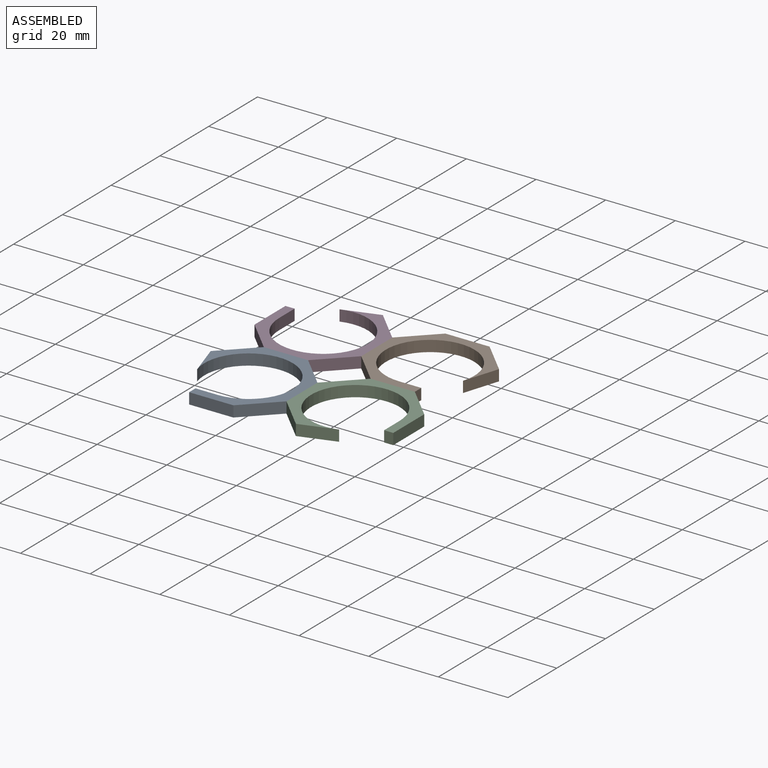
[diagram: assembled view]
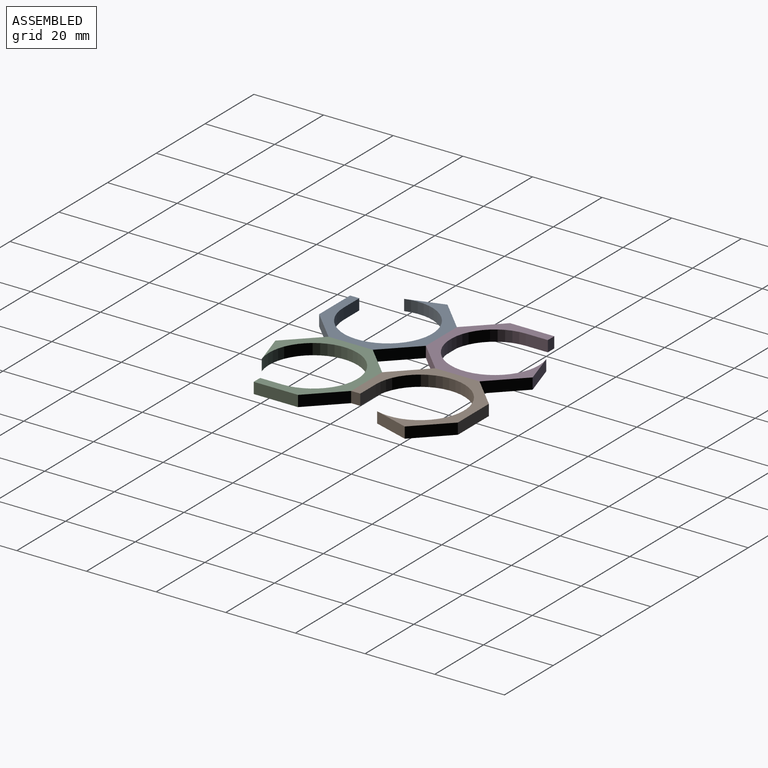
[diagram: assembled view, second angle]
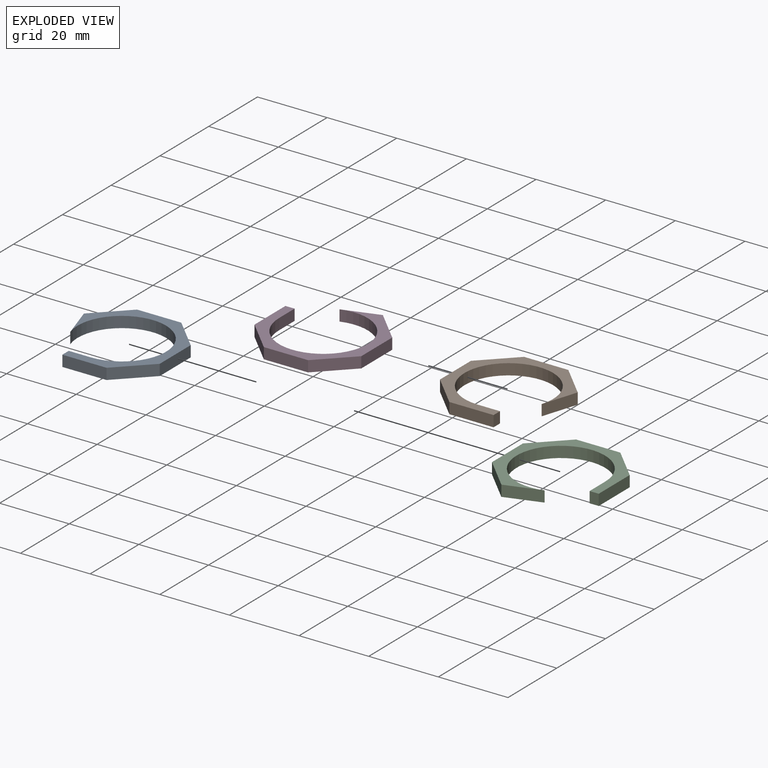
[diagram: exploded view]
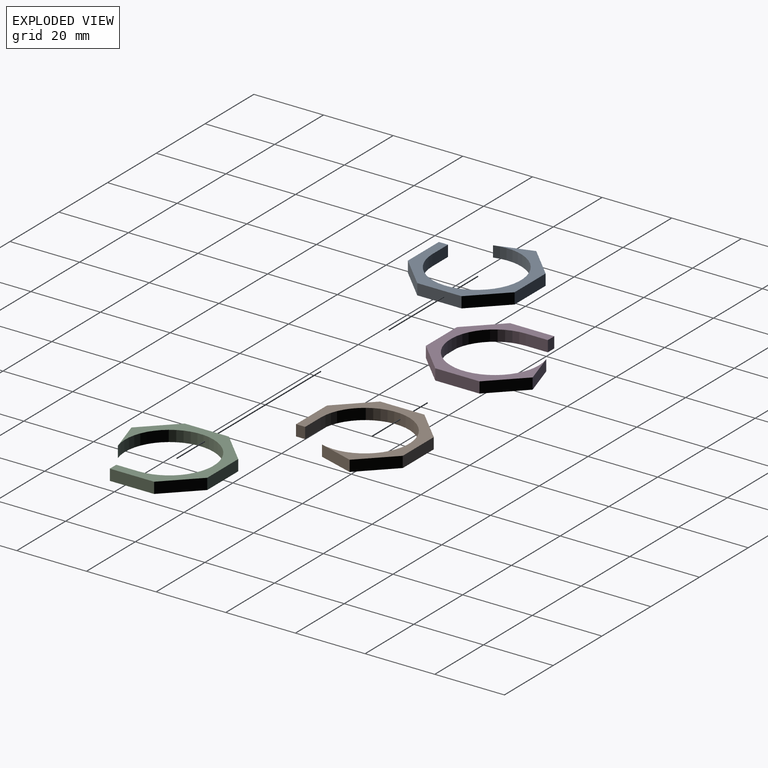
[diagram: exploded view, second angle]
ASSEMBLY  parts=4 mates=3
PART A: 12 faces, bbox 30.7x30.7x3.2 mm
  f0: plane 8.98x8.98mm, normal (-0.71,0.71,0), area 40.3mm2, adj f1,f9,f10,f11
  f1: plane 10.18x3.22mm, normal (-0.95,-0.3,0), area 33.9mm2, adj f0,f2,f10,f11
  f2: cylinder r=12.7mm len=25.4mm, axis (0,0,-1), area 202.4mm2, adj f1,f3,f10,f11
  f3: plane 6.35x3.18mm, normal (0,1,0), area 20.2mm2, adj f2,f4,f10,f11
  f4: plane 3.18x2.63mm, normal (-1,0,0), area 8.4mm2, adj f3,f5,f10,f11
  f5: plane 12.7x3.18mm, normal (0,-1,0), area 40.3mm2, adj f4,f6,f10,f11
  f6: plane 8.98x8.98mm, normal (0.71,-0.71,0), area 40.3mm2, adj f5,f7,f10,f11
  f7: plane 12.7x3.18mm, normal (1,0,0), area 40.3mm2, adj f6,f8,f10,f11
  f8: plane 8.98x8.98mm, normal (0.71,0.71,0), area 40.3mm2, adj f7,f9,f10,f11
  f9: plane 12.7x3.18mm, normal (0,1,0), area 40.3mm2, adj f0,f8,f10,f11
  f10: plane 30.66x30.66mm, normal (0,0,1), area 215.2mm2, adj f0,f1,f2,f3,f4,f5,f6,f7
  f11: plane 30.66x30.66mm, normal (0,0,-1), area 215.2mm2, adj f0,f1,f2,f3,f4,f5,f6,f7
PART B: 12 faces, bbox 30.7x30.7x3.2 mm
  f0: plane 8.98x8.98mm, normal (-0.71,0.71,0), area 40.3mm2, adj f1,f9,f10,f11
  f1: plane 10.18x3.22mm, normal (-0.95,-0.3,0), area 33.9mm2, adj f0,f2,f10,f11
  f2: cylinder r=12.7mm len=25.4mm, axis (0,0,-1), area 202.4mm2, adj f1,f3,f10,f11
  f3: plane 6.35x3.18mm, normal (0,1,0), area 20.2mm2, adj f2,f4,f10,f11
  f4: plane 3.18x2.63mm, normal (-1,0,0), area 8.4mm2, adj f3,f5,f10,f11
  f5: plane 12.7x3.18mm, normal (0,-1,0), area 40.3mm2, adj f4,f6,f10,f11
  f6: plane 8.98x8.98mm, normal (0.71,-0.71,0), area 40.3mm2, adj f5,f7,f10,f11
  f7: plane 12.7x3.18mm, normal (1,0,0), area 40.3mm2, adj f6,f8,f10,f11
  f8: plane 8.98x8.98mm, normal (0.71,0.71,0), area 40.3mm2, adj f7,f9,f10,f11
  f9: plane 12.7x3.18mm, normal (0,1,0), area 40.3mm2, adj f0,f8,f10,f11
  f10: plane 30.66x30.66mm, normal (0,0,1), area 215.2mm2, adj f0,f1,f2,f3,f4,f5,f6,f7
  f11: plane 30.66x30.66mm, normal (0,0,-1), area 215.2mm2, adj f0,f1,f2,f3,f4,f5,f6,f7
PART C: same geometry as B
PART D: 12 faces, bbox 30.7x30.7x3.2 mm
  f0: plane 8.98x8.98mm, normal (-0.71,0.71,0), area 40.3mm2, adj f1,f9,f10,f11
  f1: plane 10.18x3.22mm, normal (-0.95,-0.3,0), area 33.9mm2, adj f0,f2,f10,f11
  f2: cylinder r=12.7mm len=25.4mm, axis (0,0,-1), area 202.4mm2, adj f1,f3,f10,f11
  f3: plane 6.35x3.18mm, normal (0,1,0), area 20.2mm2, adj f2,f4,f10,f11
  f4: plane 3.18x2.63mm, normal (-1,0,0), area 8.4mm2, adj f3,f5,f10,f11
  f5: plane 12.7x3.18mm, normal (0,-1,0), area 40.3mm2, adj f4,f6,f10,f11
  f6: plane 8.98x8.98mm, normal (0.71,-0.71,0), area 40.3mm2, adj f5,f7,f10,f11
  f7: plane 12.7x3.18mm, normal (1,0,0), area 40.3mm2, adj f6,f8,f10,f11
  f8: plane 8.98x8.98mm, normal (0.71,0.71,0), area 40.3mm2, adj f7,f9,f10,f11
  f9: plane 12.7x3.18mm, normal (0,1,0), area 40.3mm2, adj f0,f8,f10,f11
  f10: plane 30.66x30.66mm, normal (0,0,1), area 215.2mm2, adj f0,f1,f2,f3,f4,f5,f6,f7
  f11: plane 30.66x30.66mm, normal (0,0,-1), area 215.2mm2, adj f0,f1,f2,f3,f4,f5,f6,f7
PLACE A t=(-13.4,-11.71,9.95)mm
PLACE B rot(axis=(0,-1,0),180deg) t=(68.06,18.95,13.13)mm
PLACE C rot(axis=(0,0,1),90deg) t=(38.94,-40.83,9.95)mm
PLACE D rot(axis=(0,0,-1),90deg) t=(-60.48,40.63,9.95)mm
MATE fastened B.f7 <-> D.f9  axis (-1,0,0) through (8.28,34.28,11.54)mm
MATE fastened D.f7 <-> A.f9  axis (0,-1,0) through (-7.05,18.95,11.54)mm
MATE fastened C.f9 <-> A.f7  axis (-1,0,0) through (8.28,3.62,11.54)mm
